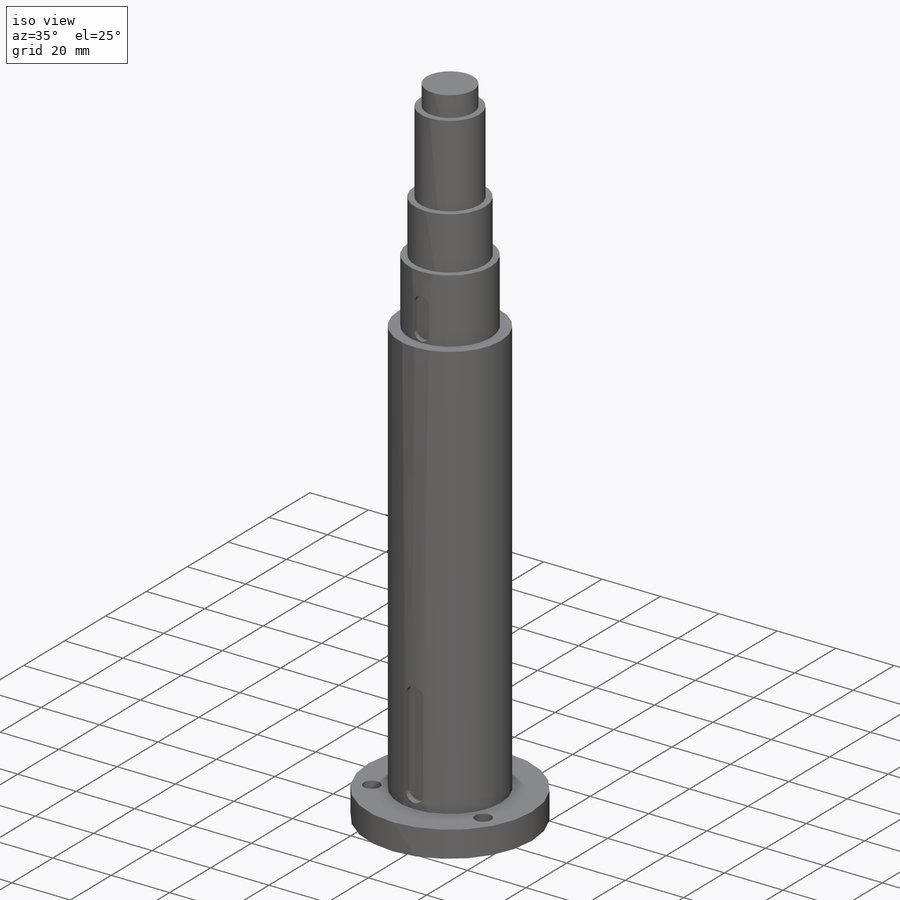
[diagram: iso view]
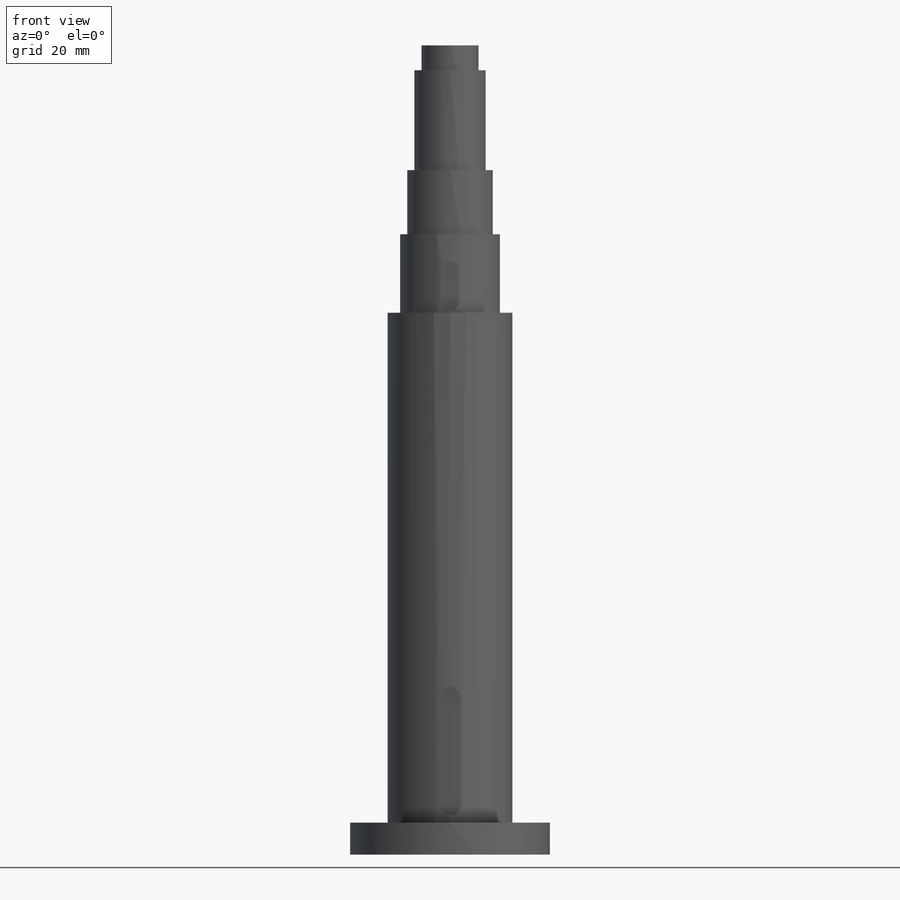
[diagram: front view]
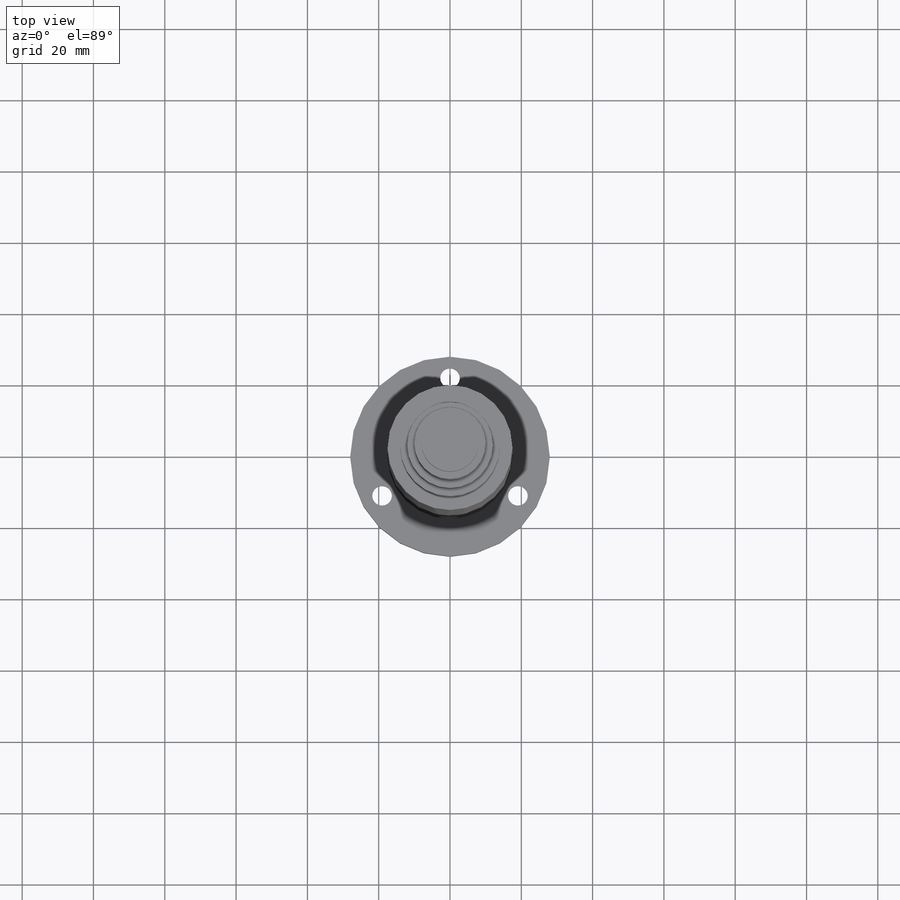
[diagram: top view]
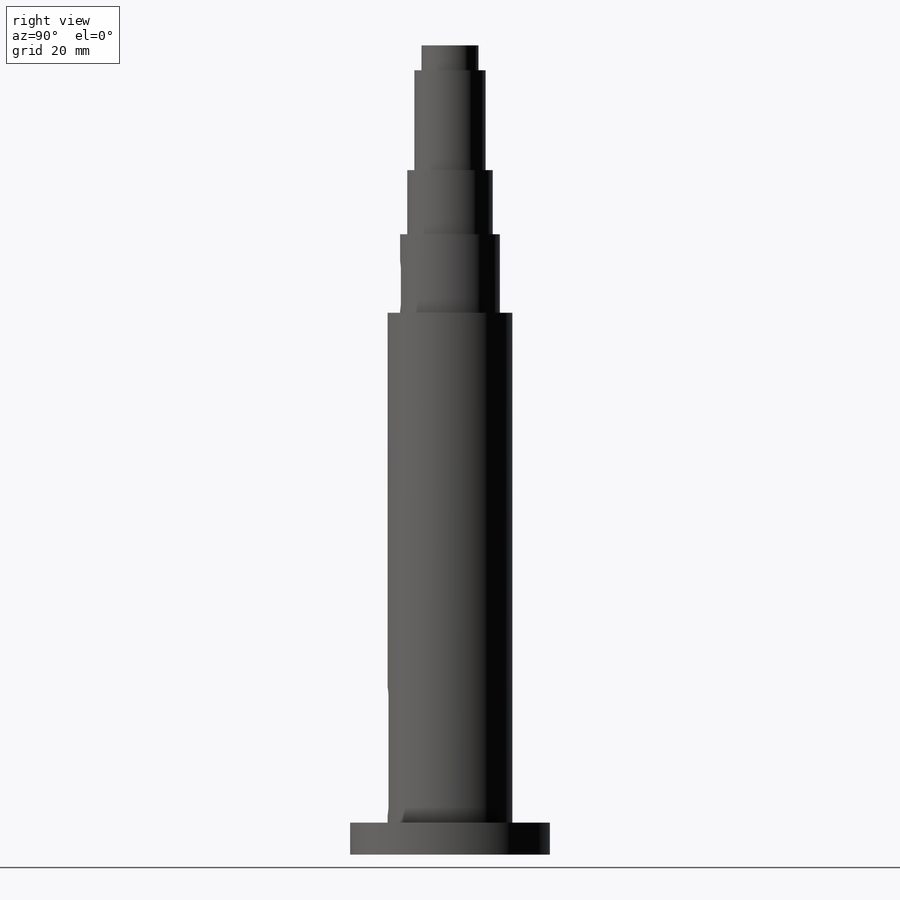
[diagram: right view]
SOLIDWORKS PART (.sldprt)
format: sldprt  version: not decoded by parser v0  size: 251,904 bytes
history: native  units: mm
features: sketch x5, cut_extrude x4, plane x2, pattern_circular x2, material x1, revolve x1, thread x1 (+14 scaffold rows collapsed)
feature tree (30):
  scaffold x14  (default folders/planes/origin — collapsed)
  material  "1023 Carbon Steel Sheet (SS)"
  sketch  "Sketch1"  dims[D1=28.0mm D2=9.0mm D3=17.5mm D4=14.0mm D5=12.0mm D6=10.0mm D7=8.0mm D8=7.0mm D9=28.0mm D10=18.0mm D11=22.0mm D12=143.0mm D13=8.0mm]
  revolve  "Revolve1"  [1 undecoded]
  thread  "Cosmetic Thread1"  Diameter=16mm  [1 undecoded]
  plane  "Plane1"  Offset=17.5mm
  sketch  "Sketch2"  dims[c1.D1=~5.746478mm c1.D3=3.0mm c2.D1=36.0mm c2.D2=6.0mm c2.D3=2.0mm]
  cut_extrude  "Cut-Extrude1"  Depth=2mm
  plane  "Plane2"  Offset=14mm
  sketch  "Sketch3"  dims[c1.D1=~3.071724mm c1.D3=2.5mm c2.D1=0.5mm c2.D2=5.0mm c2.D3=14.0mm]
  cut_extrude  "Cut-Extrude2"  Depth=1.5mm
  sketch  "Sketch7"  dims[D1=5.5mm D2=22.0mm]
  cut_extrude  "Cut-Extrude3"  [1 undecoded]
  sketch  "Sketch8"  dims[D1=9.0mm]
  cut_extrude  "Cut-Extrude4"  Depth=5mm
  pattern_circular  "CirPattern1"  Count=3 Angle=120deg
  pattern_circular  "CirPattern2"  Count=3 Angle=120deg
decode coverage: 11 of 13 modeling features carry decoded parameters
note: ~ marks probable driven/reference dimensions
note: 3 parameter values undecoded
note: suppression state not decoded; provenance and decode notes live in map.json
